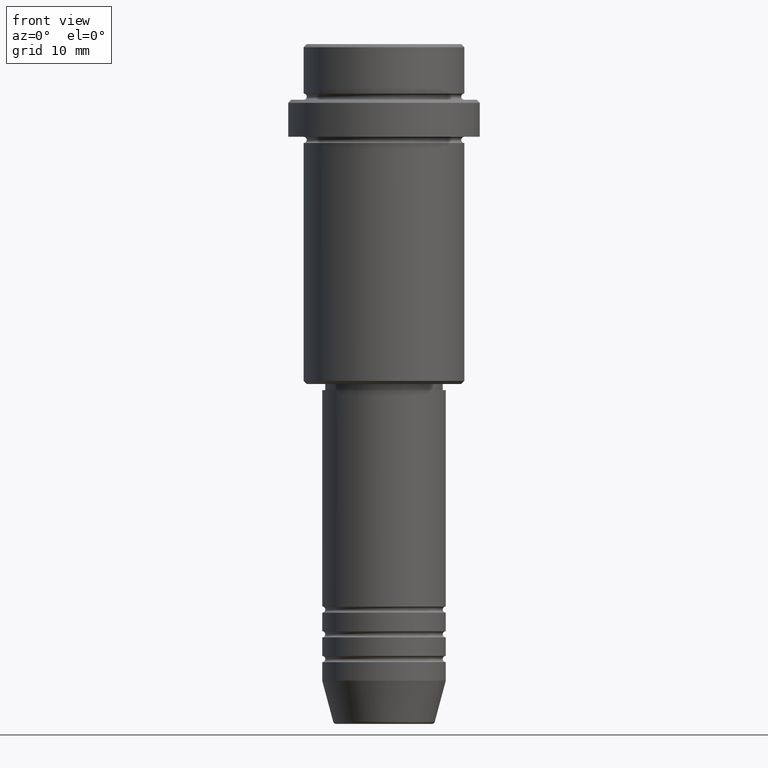
[diagram: clean part render]
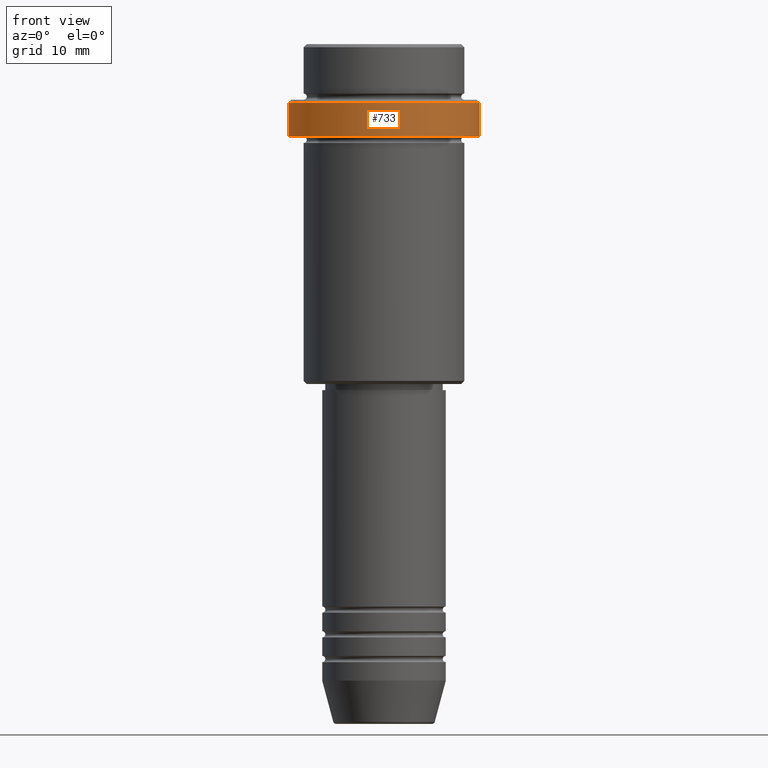
[diagram: same view with one face highlighted and labeled with its STEP entity id]
A machine part, front view. The second image highlights one B-rep face of the part: STEP entity #733.
In plain terms, the highlighted cylindrical surface (partial cylindrical patch) has radius 15.5 mm, axis along (-0, -0, 1).
Its self-contained STEP definition (entity closure, byte-faithful):
#30 = CARTESIAN_POINT ( 'NONE',  ( 15.50000000000000000, 0.000000000000000000, -9.500000000000014211 ) ) ;
#34 = DIRECTION ( 'NONE',  ( 1.000000000000000000, 0.000000000000000000, 0.000000000000000000 ) ) ;
#50 = CYLINDRICAL_SURFACE ( 'NONE', #665, 15.50000000000000000 ) ;
#151 = FACE_OUTER_BOUND ( 'NONE', #1290, .T. ) ;
#173 = VERTEX_POINT ( 'NONE', #30 ) ;
#225 = DIRECTION ( 'NONE',  ( -0.000000000000000000, -0.000000000000000000, 1.000000000000000000 ) ) ;
#264 = VERTEX_POINT ( 'NONE', #670 ) ;
#306 = CIRCLE ( 'NONE', #1323, 15.50000000000000000 ) ;
#349 = LINE ( 'NONE', #353, #972 ) ;
#353 = CARTESIAN_POINT ( 'NONE',  ( 15.50000000000000000, 0.000000000000000000, 0.000000000000000000 ) ) ;
#391 = ORIENTED_EDGE ( 'NONE', *, *, #930, .T. ) ;
#474 = AXIS2_PLACEMENT_3D ( 'NONE', #646, #1317, #1097 ) ;
#508 = ORIENTED_EDGE ( 'NONE', *, *, #569, .T. ) ;
#569 = EDGE_CURVE ( 'NONE', #609, #173, #349, .T. ) ;
#609 = VERTEX_POINT ( 'NONE', #1110 ) ;
#612 = CARTESIAN_POINT ( 'NONE',  ( 0.000000000000000000, 0.000000000000000000, 0.000000000000000000 ) ) ;
#646 = CARTESIAN_POINT ( 'NONE',  ( 0.000000000000000000, 0.000000000000000000, -9.500000000000014211 ) ) ;
#665 = AXIS2_PLACEMENT_3D ( 'NONE', #612, #793, #1060 ) ;
#666 = ORIENTED_EDGE ( 'NONE', *, *, #1007, .F. ) ;
#670 = CARTESIAN_POINT ( 'NONE',  ( -15.50000000000000000, 1.898202538678397557E-15, -9.500000000000014211 ) ) ;
#671 = EDGE_CURVE ( 'NONE', #1291, #609, #306, .T. ) ;
#678 = CARTESIAN_POINT ( 'NONE',  ( 0.000000000000000000, 0.000000000000000000, -15.00000000000000178 ) ) ;
#733 = ADVANCED_FACE ( 'NONE', ( #151 ), #50, .T. ) ;
#734 = VECTOR ( 'NONE', #225, 1000.000000000000000 ) ;
#793 = DIRECTION ( 'NONE',  ( -0.000000000000000000, -0.000000000000000000, 1.000000000000000000 ) ) ;
#809 = CARTESIAN_POINT ( 'NONE',  ( -15.50000000000000000, 1.898202538678397557E-15, -15.00000000000000178 ) ) ;
#869 = LINE ( 'NONE', #1324, #734 ) ;
#930 = EDGE_CURVE ( 'NONE', #173, #264, #1115, .T. ) ;
#972 = VECTOR ( 'NONE', #1001, 1000.000000000000000 ) ;
#1001 = DIRECTION ( 'NONE',  ( -0.000000000000000000, -0.000000000000000000, 1.000000000000000000 ) ) ;
#1007 = EDGE_CURVE ( 'NONE', #1291, #264, #869, .T. ) ;
#1044 = ORIENTED_EDGE ( 'NONE', *, *, #671, .T. ) ;
#1060 = DIRECTION ( 'NONE',  ( 1.000000000000000000, 0.000000000000000000, 0.000000000000000000 ) ) ;
#1097 = DIRECTION ( 'NONE',  ( 1.000000000000000000, 0.000000000000000000, 0.000000000000000000 ) ) ;
#1110 = CARTESIAN_POINT ( 'NONE',  ( 15.50000000000000000, 0.000000000000000000, -15.00000000000000178 ) ) ;
#1115 = CIRCLE ( 'NONE', #474, 15.50000000000000000 ) ;
#1136 = DIRECTION ( 'NONE',  ( -0.000000000000000000, -0.000000000000000000, 1.000000000000000000 ) ) ;
#1290 = EDGE_LOOP ( 'NONE', ( #666, #1044, #508, #391 ) ) ;
#1291 = VERTEX_POINT ( 'NONE', #809 ) ;
#1317 = DIRECTION ( 'NONE',  ( 0.000000000000000000, 0.000000000000000000, -1.000000000000000000 ) ) ;
#1323 = AXIS2_PLACEMENT_3D ( 'NONE', #678, #1136, #34 ) ;
#1324 = CARTESIAN_POINT ( 'NONE',  ( -15.50000000000000000, 1.898202538678397557E-15, 0.000000000000000000 ) ) ;